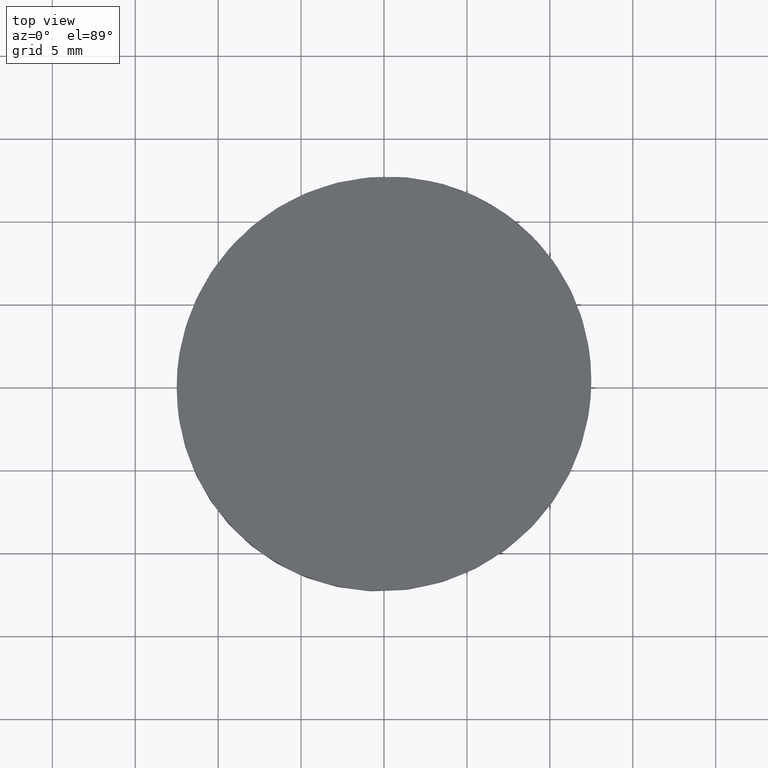
[diagram: clean part render]
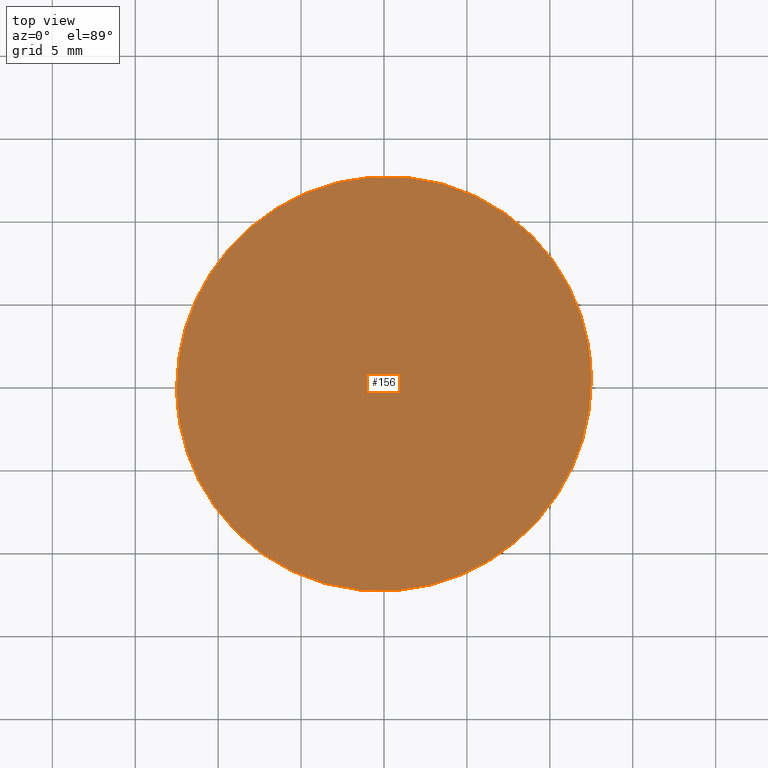
[diagram: same view with one face highlighted and labeled with its STEP entity id]
A machine part, top view. The second image highlights one B-rep face of the part: STEP entity #156.
In plain terms, the highlighted planar face has unit normal (0.7071, 0, -0.7071).
Its self-contained STEP definition (entity closure, byte-faithful):
#1 = CARTESIAN_POINT ( 'NONE',  ( -12.50000000000000000, 0.000000000000000000, 6.948063035056913250 ) ) ;
#21 = CARTESIAN_POINT ( 'NONE',  ( 12.50000000000000000, 1.530808498934191127E-15, 31.94806303505680489 ) ) ;
#24 = CARTESIAN_POINT ( 'NONE',  ( -12.50000000000000000, 0.000000000000000000, 6.948063035056913250 ) ) ;
#26 = DIRECTION ( 'NONE',  ( -0.7071067811865489050, 0.000000000000000000, -0.7071067811865461294 ) ) ;
#31 = VERTEX_POINT ( 'NONE', #24 ) ;
#33 = CARTESIAN_POINT ( 'NONE',  ( -12.50000000000000533, -25.00000000000000000, 6.948063035056907921 ) ) ;
#42 = CARTESIAN_POINT ( 'NONE',  ( -12.50000000000000533, 25.00000000000000000, 6.948063035056907921 ) ) ;
#50 = EDGE_CURVE ( 'NONE', #105, #31, #74, .T. ) ;
#53 = ORIENTED_EDGE ( 'NONE', *, *, #50, .F. ) ;
#54 = PLANE ( 'NONE',  #112 ) ;
#56 = CARTESIAN_POINT ( 'NONE',  ( 12.50000000000000000, 1.530808498934191127E-15, 31.94806303505680489 ) ) ;
#66 = FACE_OUTER_BOUND ( 'NONE', #143, .T. ) ;
#67 = DIRECTION ( 'NONE',  ( 0.7071067811865461294, 0.000000000000000000, -0.7071067811865489050 ) ) ;
#74 =( BOUNDED_CURVE ( )  B_SPLINE_CURVE ( 3, ( #21, #114, #33, #90 ),
 .UNSPECIFIED., .F., .T. ) 
 B_SPLINE_CURVE_WITH_KNOTS ( ( 4, 4 ),
 ( 3.141592653589793116, 6.283185307179586232 ),
 .UNSPECIFIED. ) 
 CURVE ( )  GEOMETRIC_REPRESENTATION_ITEM ( )  RATIONAL_B_SPLINE_CURVE ( ( 1.000000000000000000, 0.3333333333333333703, 0.3333333333333333703, 1.000000000000000000 ) ) 
 REPRESENTATION_ITEM ( '' )  );
#78 = EDGE_CURVE ( 'NONE', #31, #105, #98, .T. ) ;
#90 = CARTESIAN_POINT ( 'NONE',  ( -12.50000000000000000, 0.000000000000000000, 6.948063035056913250 ) ) ;
#94 = CARTESIAN_POINT ( 'NONE',  ( 12.50000000000000000, 1.530808498934191127E-15, 31.94806303505680489 ) ) ;
#98 =( BOUNDED_CURVE ( )  B_SPLINE_CURVE ( 3, ( #1, #42, #146, #94 ),
 .UNSPECIFIED., .F., .T. ) 
 B_SPLINE_CURVE_WITH_KNOTS ( ( 4, 4 ),
 ( 0.000000000000000000, 3.141592653589793116 ),
 .UNSPECIFIED. ) 
 CURVE ( )  GEOMETRIC_REPRESENTATION_ITEM ( )  RATIONAL_B_SPLINE_CURVE ( ( 1.000000000000000000, 0.3333333333333333703, 0.3333333333333333703, 1.000000000000000000 ) ) 
 REPRESENTATION_ITEM ( '' )  );
#105 = VERTEX_POINT ( 'NONE', #56 ) ;
#107 = CARTESIAN_POINT ( 'NONE',  ( -40.08544724261557235, -30.50000000000000711, -20.63738420755854364 ) ) ;
#112 = AXIS2_PLACEMENT_3D ( 'NONE', #107, #67, #26 ) ;
#114 = CARTESIAN_POINT ( 'NONE',  ( 12.50000000000001066, -25.00000000000000000, 31.94806303505681910 ) ) ;
#138 = ORIENTED_EDGE ( 'NONE', *, *, #78, .F. ) ;
#143 = EDGE_LOOP ( 'NONE', ( #138, #53 ) ) ;
#146 = CARTESIAN_POINT ( 'NONE',  ( 12.50000000000000000, 25.00000000000000000, 31.94806303505681910 ) ) ;
#156 = ADVANCED_FACE ( 'NONE', ( #66 ), #54, .F. ) ;